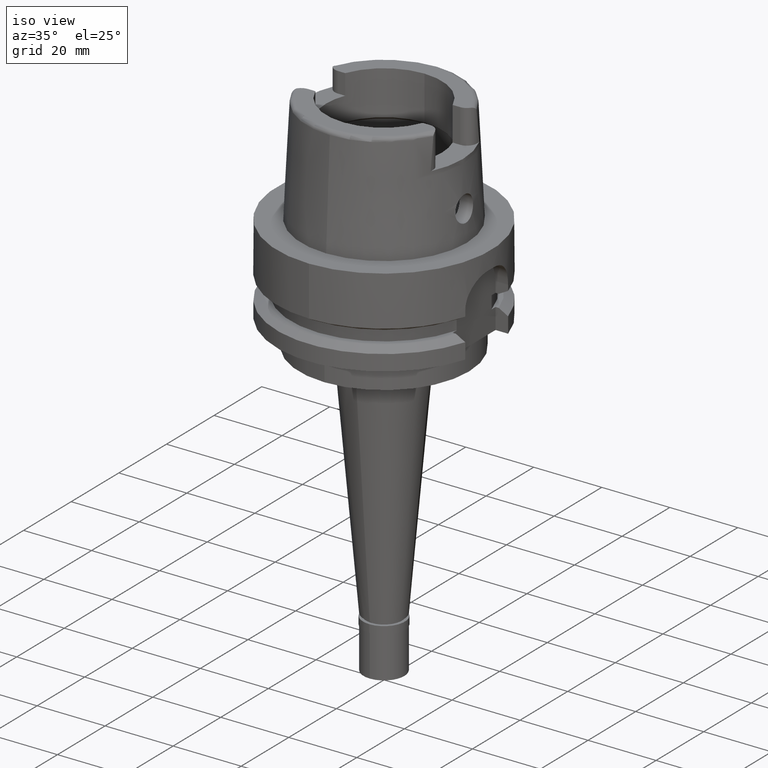
[diagram: clean part render]
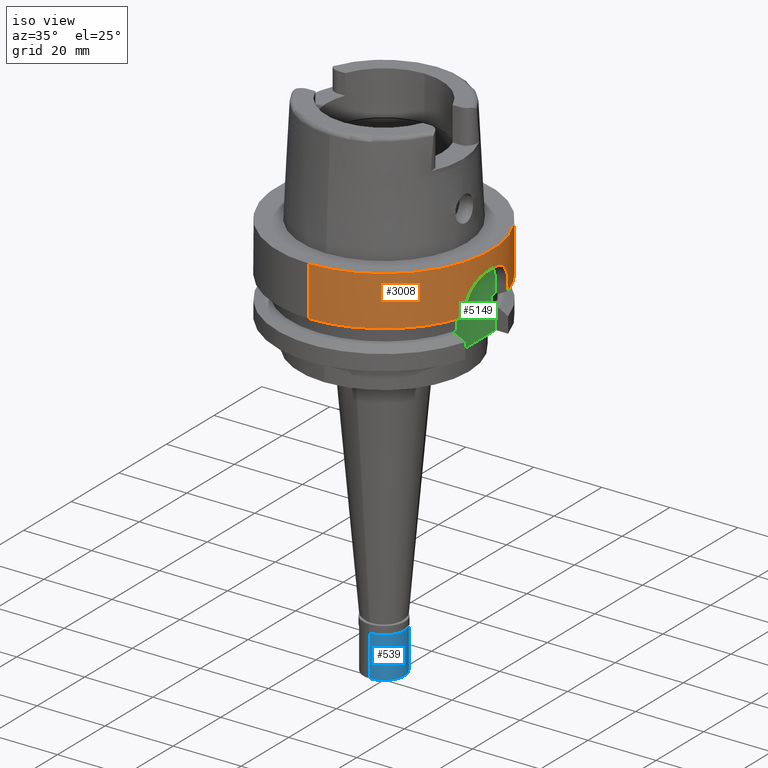
[diagram: same view with three faces highlighted in distinct colors, each labeled with its STEP entity id]
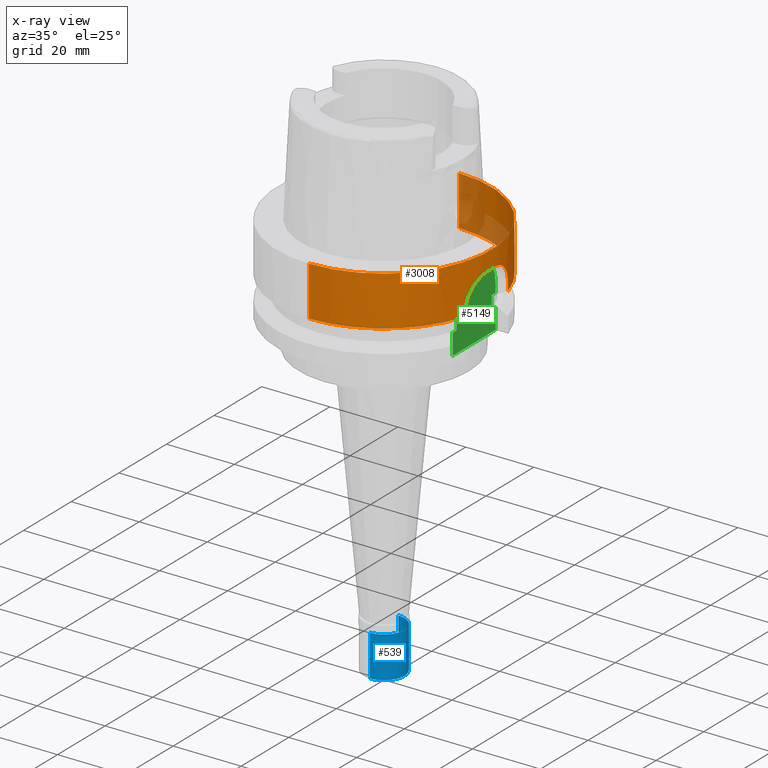
[diagram: x-ray of the same camera — body ghosted, the three highlighted faces saturated]
A machine part, iso view with three faces highlighted in distinct colors.
The next image is the same camera in x-ray (body ghosted, the three faces saturated) — at least one of them is partly hidden behind the body in this view.
Their STEP definitions:

[orange] entity #3008 — the highlighted cylindrical surface (partial cylindrical patch) has radius 31.5 mm, axis along (0, 0, -1).
#11 = CARTESIAN_POINT ( 'NONE',  ( 30.18691769625000276, -9.000000000000000000, -13.00000000000000000 ) ) ;
#13 = CARTESIAN_POINT ( 'NONE',  ( 30.20110605438760842, 8.955397615993094362, -12.01112715175320567 ) ) ;
#52 = DIRECTION ( 'NONE',  ( 0.0000000000000000000, 1.000000000000000000, 0.0000000000000000000 ) ) ;
#77 = ORIENTED_EDGE ( 'NONE', *, *, #3439, .T. ) ;
#126 = CARTESIAN_POINT ( 'NONE',  ( 30.36230293885864739, -8.389956036954375307, -9.935924523434211508 ) ) ;
#127 = CARTESIAN_POINT ( 'NONE',  ( 31.01962633873424480, 5.480345957716079575, -6.372292598407210740 ) ) ;
#153 = CYLINDRICAL_SURFACE ( 'NONE', #4391, 31.50000000000000000 ) ;
#179 = FACE_OUTER_BOUND ( 'NONE', #3016, .T. ) ;
#240 = CARTESIAN_POINT ( 'NONE',  ( 30.18691773962000013, 8.999999854531999688, -14.62250209852999916 ) ) ;
#296 = DIRECTION ( 'NONE',  ( 0.9583148474999051425, 0.2857142857143015191, 0.0000000000000000000 ) ) ;
#300 = CARTESIAN_POINT ( 'NONE',  ( 30.49285535141876124, -7.910442679082494877, -8.960801660764378340 ) ) ;
#327 = CARTESIAN_POINT ( 'NONE',  ( 31.46870561802330712, -1.485402210733119954, -4.999999999999999112 ) ) ;
#349 = CARTESIAN_POINT ( 'NONE',  ( 30.89704961210854250, -6.133164547383786136, -6.861840935391973595 ) ) ;
#390 = AXIS2_PLACEMENT_3D ( 'NONE', #2803, #5349, #3616 ) ;
#404 = VERTEX_POINT ( 'NONE', #1311 ) ;
#406 = CARTESIAN_POINT ( 'NONE',  ( 30.82666952453532971, -6.477928986087222896, -7.169539233518150922 ) ) ;
#431 = CARTESIAN_POINT ( 'NONE',  ( 30.36292802459573181, -8.387687556142255474, -9.930459101586819770 ) ) ;
#433 = CARTESIAN_POINT ( 'NONE',  ( 30.77827897772836963, 6.704335757469771728, -7.391019593709949653 ) ) ;
#441 = EDGE_CURVE ( 'NONE', #3857, #4040, #1778, .T. ) ;
#466 = DIRECTION ( 'NONE',  ( 0.0000000000000000000, -1.000000000000000000, 0.0000000000000000000 ) ) ;
#467 = CARTESIAN_POINT ( 'NONE',  ( 0.0000000000000000000, 1.707157638010999903E-14, -8.526512829120999020E-14 ) ) ;
#485 = CARTESIAN_POINT ( 'NONE',  ( 30.37994356318518996, -8.326097652178544806, -9.785570822359927590 ) ) ;
#552 = CARTESIAN_POINT ( 'NONE',  ( 30.18691769625000276, 9.000000000000000000, -13.00000000000000000 ) ) ;
#557 = DIRECTION ( 'NONE',  ( -2.673007076783973183E-08, 8.965647846310919482E-08, 0.9999999999999955591 ) ) ;
#569 = CARTESIAN_POINT ( 'NONE',  ( 31.46848308311365372, 1.492408527027198062, -4.999999999999998224 ) ) ;
#586 = LINE ( 'NONE', #5263, #4340 ) ;
#593 = CARTESIAN_POINT ( 'NONE',  ( 31.01968326647390484, 5.480023423964589746, -6.372074906244979076 ) ) ;
#624 = CARTESIAN_POINT ( 'NONE',  ( 31.10253753378502140, 4.993364919125201418, -6.062914666069091574 ) ) ;
#705 = CARTESIAN_POINT ( 'NONE',  ( 0.0000000000000000000, 1.036372656197999898E-14, -14.62250092523999889 ) ) ;
#762 = CARTESIAN_POINT ( 'NONE',  ( 31.12802758947132276, -4.827483298400053080, -5.973785632010057967 ) ) ;
#813 = CARTESIAN_POINT ( 'NONE',  ( 31.03025659501036415, -5.419787033906877660, -6.331755270316821615 ) ) ;
#816 = CARTESIAN_POINT ( 'NONE',  ( 30.68453991815790616, 7.124639429518460076, -7.850860369359960345 ) ) ;
#844 = CARTESIAN_POINT ( 'NONE',  ( 30.77037764607385029, 6.740577194316948351, -7.428059353607519455 ) ) ;
#895 = CARTESIAN_POINT ( 'NONE',  ( 30.36386856289420422, -8.384275053963985869, -9.922250248961692165 ) ) ;
#896 = CARTESIAN_POINT ( 'NONE',  ( 0.0000000000000000000, -31.50000000000000000, -8.526512829120999020E-14 ) ) ;
#904 = CARTESIAN_POINT ( 'NONE',  ( 0.0000000000000000000, 31.50000000000000000, -14.62250092523999889 ) ) ;
#924 = CARTESIAN_POINT ( 'NONE',  ( 30.35408641439992294, 8.419636902412671375, -10.00849287695441525 ) ) ;
#950 = CARTESIAN_POINT ( 'NONE',  ( 30.18691773962000013, 8.999999854531999688, -14.62250209852999916 ) ) ;
#981 = CARTESIAN_POINT ( 'NONE',  ( 31.30185894694527349, 3.563580567021028767, -5.401029616606841444 ) ) ;
#1010 = CARTESIAN_POINT ( 'NONE',  ( 31.01796957194492421, 5.489705485498522997, -6.378627642673113662 ) ) ;
#1033 = CARTESIAN_POINT ( 'NONE',  ( 31.22795408578506127, 4.130097680628811219, -5.637740077769655578 ) ) ;
#1093 = VERTEX_POINT ( 'NONE', #950 ) ;
#1145 = CARTESIAN_POINT ( 'NONE',  ( 31.24246449970888406, -4.018728728073758028, -5.591400189306306778 ) ) ;
#1146 = ORIENTED_EDGE ( 'NONE', *, *, #1865, .F. ) ;
#1170 = CARTESIAN_POINT ( 'NONE',  ( 31.27997315418586055, -3.714732619047042217, -5.474387239773226277 ) ) ;
#1177 = CIRCLE ( 'NONE', #5372, 31.50000000000000000 ) ;
#1195 = CARTESIAN_POINT ( 'NONE',  ( 30.81626248337290264, -6.527498683126909285, -7.216354841135881770 ) ) ;
#1223 = CARTESIAN_POINT ( 'NONE',  ( 30.59732907367891741, 7.495988719393257504, -8.321262247499982223 ) ) ;
#1245 = CARTESIAN_POINT ( 'NONE',  ( 30.60016354921370407, -7.489575536128322497, -8.292264414906085790 ) ) ;
#1275 = CARTESIAN_POINT ( 'NONE',  ( 30.40640383200156194, -8.230354259385160631, -9.574692344221507057 ) ) ;
#1311 = CARTESIAN_POINT ( 'NONE',  ( 0.0000000000000000000, -31.50000000000000000, -14.62250092523999889 ) ) ;
#1329 = CARTESIAN_POINT ( 'NONE',  ( 30.18691769624999921, -8.999999999999998224, -12.01408726843378716 ) ) ;
#1330 = CARTESIAN_POINT ( 'NONE',  ( 30.34495716198983928, 8.452640952067323354, -10.09136464638232233 ) ) ;
#1389 = CARTESIAN_POINT ( 'NONE',  ( 30.24517205177146906, -8.815232857536237532, -10.96374874858311621 ) ) ;
#1393 = ORIENTED_EDGE ( 'NONE', *, *, #4297, .T. ) ;
#1413 = EDGE_CURVE ( 'NONE', #4350, #2656, #2836, .T. ) ;
#1424 = CARTESIAN_POINT ( 'NONE',  ( 31.20864534926291967, 4.274300215187010643, -5.700318323107847363 ) ) ;
#1454 = CARTESIAN_POINT ( 'NONE',  ( 31.01590098231999804, 5.501359413818630806, -6.386538011407701276 ) ) ;
#1478 = CARTESIAN_POINT ( 'NONE',  ( 31.01153961823608185, 5.525822232794031841, -6.403223808385819282 ) ) ;
#1561 = CIRCLE ( 'NONE', #3791, 31.49999999999999645 ) ;
#1599 = CARTESIAN_POINT ( 'NONE',  ( 31.02908509465280318, -5.426488125711312449, -6.336201980604887041 ) ) ;
#1622 = CARTESIAN_POINT ( 'NONE',  ( 31.03357087380920376, -5.400789273983384930, -6.319191758798779368 ) ) ;
#1649 = CARTESIAN_POINT ( 'NONE',  ( 31.10948880782539661, -4.945764485860163262, -6.039381142685788184 ) ) ;
#1651 = CARTESIAN_POINT ( 'NONE',  ( 30.39683595794478776, 8.264762755941037042, -9.628328618113121351 ) ) ;
#1664 = CARTESIAN_POINT ( 'NONE',  ( 30.18691748978999811, -9.000000692472998054, -14.62249533990000039 ) ) ;
#1675 = CARTESIAN_POINT ( 'NONE',  ( 30.68759315031717350, -7.124798356815719380, -7.809288283626652394 ) ) ;
#1677 = CARTESIAN_POINT ( 'NONE',  ( 30.66200935682741147, 7.221987631264618734, -7.969196484041696671 ) ) ;
#1705 = CARTESIAN_POINT ( 'NONE',  ( 30.77952997297018101, 6.698588075571910494, -7.385175619639420042 ) ) ;
#1778 = CIRCLE ( 'NONE', #4900, 31.50000000000000000 ) ;
#1817 = CARTESIAN_POINT ( 'NONE',  ( 31.15609337011391844, 4.642766946925577898, -5.876252527828397021 ) ) ;
#1838 = VERTEX_POINT ( 'NONE', #1664 ) ;
#1865 = EDGE_CURVE ( 'NONE', #3857, #3489, #2542, .T. ) ;
#1875 = CARTESIAN_POINT ( 'NONE',  ( 31.48412298285999711, 1.000000000000000000, -5.000000000000000000 ) ) ;
#1901 = CARTESIAN_POINT ( 'NONE',  ( 30.97052288493675931, 5.750138030287406110, -6.562185880622542378 ) ) ;
#1923 = ORIENTED_EDGE ( 'NONE', *, *, #3316, .T. ) ;
#1994 = CARTESIAN_POINT ( 'NONE',  ( 31.24756669976262202, -3.978797233280609191, -5.575224836830170894 ) ) ;
#2020 = CARTESIAN_POINT ( 'NONE',  ( 30.97882376546616001, -5.708344319411335022, -6.526940199690828948 ) ) ;
#2047 = CARTESIAN_POINT ( 'NONE',  ( 0.0000000000000000000, 31.50000000000000000, -8.526512829120999020E-14 ) ) ;
#2059 = VERTEX_POINT ( 'NONE', #552 ) ;
#2070 = CARTESIAN_POINT ( 'NONE',  ( 31.30229305136465712, -3.522325760018140794, -5.406821798510646815 ) ) ;
#2092 = CARTESIAN_POINT ( 'NONE',  ( 31.48412298285999711, -1.000000000000000000, -5.000000000000000000 ) ) ;
#2097 = CARTESIAN_POINT ( 'NONE',  ( 30.79826078530474476, -6.611913374889388351, -7.298546540479559752 ) ) ;
#2112 = VECTOR ( 'NONE', #557, 1000.000000000000227 ) ;
#2142 = VECTOR ( 'NONE', #2837, 1000.000000000000114 ) ;
#2154 = CARTESIAN_POINT ( 'NONE',  ( 30.46105865279715985, -8.029808357980128264, -9.174703388263608872 ) ) ;
#2187 = CARTESIAN_POINT ( 'NONE',  ( 30.36608352010728140, -8.376243802775732661, -9.903021378279220244 ) ) ;
#2239 = CARTESIAN_POINT ( 'NONE',  ( 31.48412298285999711, 1.000000000000000000, -5.000000000000000000 ) ) ;
#2474 = CARTESIAN_POINT ( 'NONE',  ( 31.03125228627080290, -5.414086454102442936, -6.327978033033677008 ) ) ;
#2499 = CARTESIAN_POINT ( 'NONE',  ( 31.25463656302765614, -3.922859386149479377, -5.552922555532028959 ) ) ;
#2537 = CARTESIAN_POINT ( 'NONE',  ( 0.0000000000000000000, 1.036372656197999898E-14, -14.62250092523999889 ) ) ;
#2542 = LINE ( 'NONE', #4231, #2703 ) ;
#2556 = CARTESIAN_POINT ( 'NONE',  ( 30.77511389600274683, 6.718864262890845040, -7.405833469164160299 ) ) ;
#2583 = CARTESIAN_POINT ( 'NONE',  ( 30.35629208750637886, 8.411650305330505617, -9.988778013089770980 ) ) ;
#2633 = DIRECTION ( 'NONE',  ( 0.0000000000000000000, 0.0000000000000000000, -1.000000000000000000 ) ) ;
#2656 = VERTEX_POINT ( 'NONE', #4191 ) ;
#2703 = VECTOR ( 'NONE', #4256, 1000.000000000000000 ) ;
#2803 = CARTESIAN_POINT ( 'NONE',  ( 0.0000000000000000000, 1.707157638010999903E-14, -5.000000000000000000 ) ) ;
#2836 = B_SPLINE_CURVE_WITH_KNOTS ( 'NONE', 3,
 ( #5437, #327, #2946, #3755, #4665, #4558, #2070, #1170, #3390, #2499, #1994, #4975, #1145, #5078, #2919, #3784, #762, #1649, #3706, #4190, #2868, #4633, #1622, #2474, #813, #4165, #1599, #2899, #2020, #4584, #349, #4112, #4217, #406, #1195, #3339, #2097, #3804, #5484, #1675, #1245, #300, #2154, #4690, #1275, #3916, #485, #3475, #2187, #895, #431, #126, #3450, #1389, #1329, #11 ),
 .UNSPECIFIED., .F., .F.,
 ( 4, 2, 2, 2, 1, 1, 1, 2, 2, 2, 2, 1, 1, 1, 1, 1, 2, 2, 2, 2, 2, 1, 1, 2, 2, 2, 2, 2, 1, 1, 1, 1, 2, 2, 4 ),
 ( 0.0000000000000000000, 0.1250000000000412170, 0.1875000000000617562, 0.2187500000000720812, 0.2343750000000771327, 0.2421875000000797695, 0.2460937500000810740, 0.2480468750000817124, 0.2500000000000823230, 0.3125000000000996425, 0.3437500000001083578, 0.3593750000001127431, 0.3671875000001150191, 0.3710937500001160738, 0.3730468750001165734, 0.3740234375001167400, 0.3745117187501169620, 0.3750000000001171285, 0.4375000000001231792, 0.4687500000001261213, 0.4843750000001275646, 0.4921875000001282308, 0.4960937500001285083, 0.4980468750001285638, 0.5000000000001286748, 0.6250000000001391109, 0.6875000000001441069, 0.7187500000001468825, 0.7343750000001481038, 0.7421875000001485478, 0.7460937500001488809, 0.7480468750001491030, 0.7490234375001487699, 0.7500000000001483258, 1.000000000000000000 ),
 .UNSPECIFIED. ) ;
#2837 = DIRECTION ( 'NONE',  ( -1.272461606778999475E-07, -4.267954455860002933E-07, -0.9999999999999007461 ) ) ;
#2868 = CARTESIAN_POINT ( 'NONE',  ( 31.04735102109953004, -5.321127899485734503, -6.267234331015293591 ) ) ;
#2899 = CARTESIAN_POINT ( 'NONE',  ( 31.00874798500444740, -5.542724430790107348, -6.413435654078431192 ) ) ;
#2919 = CARTESIAN_POINT ( 'NONE',  ( 31.21248490521300667, -4.251446583589039818, -5.686794611023388235 ) ) ;
#2946 = CARTESIAN_POINT ( 'NONE',  ( 31.44068757862277508, -1.987774036304316150, -5.044283341417692412 ) ) ;
#2950 = CARTESIAN_POINT ( 'NONE',  ( 30.71979146057515564, 6.968947557277740401, -7.672911036238636129 ) ) ;
#2976 = CARTESIAN_POINT ( 'NONE',  ( 30.24367112880045383, 8.810694335721535708, -11.25082614398552394 ) ) ;
#2998 = CARTESIAN_POINT ( 'NONE',  ( 30.35540877907742541, 8.414849115998162432, -9.996663407152212244 ) ) ;
#3008 = ADVANCED_FACE ( 'NONE', ( #179 ), #153, .T. ) ;
#3016 = EDGE_LOOP ( 'NONE', ( #1393, #1146, #3634, #3558, #77, #5334, #3611, #1923, #4735, #4869 ) ) ;
#3051 = CARTESIAN_POINT ( 'NONE',  ( 30.35101908258086212, 8.430735436364527047, -10.03610448554374734 ) ) ;
#3084 = CARTESIAN_POINT ( 'NONE',  ( 31.19700112748089538, 4.358220806317568474, -5.738715414400951786 ) ) ;
#3137 = DIRECTION ( 'NONE',  ( 0.0000000000000000000, -1.000000000000000000, 0.0000000000000000000 ) ) ;
#3143 = VERTEX_POINT ( 'NONE', #2239 ) ;
#3147 = CARTESIAN_POINT ( 'NONE',  ( 31.06311153665863856, 5.234215507232291564, -6.206011024631072459 ) ) ;
#3203 = CARTESIAN_POINT ( 'NONE',  ( 31.17301478899677392, 4.527664390873041178, -5.818691817395900578 ) ) ;
#3255 = CIRCLE ( 'NONE', #390, 31.49999999999999289 ) ;
#3316 = EDGE_CURVE ( 'NONE', #4350, #3143, #3255, .T. ) ;
#3339 = CARTESIAN_POINT ( 'NONE',  ( 30.80372124785018073, -6.586431820372634860, -7.273503248251548037 ) ) ;
#3356 = LINE ( 'NONE', #5359, #2142 ) ;
#3364 = CARTESIAN_POINT ( 'NONE',  ( 30.45202139315085788, 8.069344242662944922, -9.218679707167598991 ) ) ;
#3390 = CARTESIAN_POINT ( 'NONE',  ( 31.26851787728637788, -3.810874551116996134, -5.509525764864286579 ) ) ;
#3394 = CARTESIAN_POINT ( 'NONE',  ( 30.73778115688914170, 6.888684963231537672, -7.583827119830203856 ) ) ;
#3422 = CARTESIAN_POINT ( 'NONE',  ( 30.84307012470097931, 6.406183641250016159, -7.089342774680416959 ) ) ;
#3439 = EDGE_CURVE ( 'NONE', #404, #1838, #1177, .T. ) ;
#3450 = CARTESIAN_POINT ( 'NONE',  ( 30.36213587496693833, -8.390562335614418998, -9.937385586960120420 ) ) ;
#3475 = CARTESIAN_POINT ( 'NONE',  ( 30.37059490593336974, -8.359904073294488924, -9.864265387517875183 ) ) ;
#3476 = CARTESIAN_POINT ( 'NONE',  ( 30.31062244376229486, 8.575950237278766153, -10.42382863508584023 ) ) ;
#3489 = VERTEX_POINT ( 'NONE', #904 ) ;
#3510 = CARTESIAN_POINT ( 'NONE',  ( 31.23241691383773855, 4.096110616414089023, -5.623405030359610812 ) ) ;
#3555 = LINE ( 'NONE', #240, #2112 ) ;
#3558 = ORIENTED_EDGE ( 'NONE', *, *, #5329, .T. ) ;
#3566 = CARTESIAN_POINT ( 'NONE',  ( 30.99865930896705635, 5.597208795777113721, -6.452693806706488289 ) ) ;
#3595 = CARTESIAN_POINT ( 'NONE',  ( 31.01897584365311289, 5.484023361100425653, -6.374779921378407543 ) ) ;
#3611 = ORIENTED_EDGE ( 'NONE', *, *, #1413, .F. ) ;
#3616 = DIRECTION ( 'NONE',  ( 0.9994959677099152229, -0.03174603174603050915, 0.0000000000000000000 ) ) ;
#3634 = ORIENTED_EDGE ( 'NONE', *, *, #441, .T. ) ;
#3706 = CARTESIAN_POINT ( 'NONE',  ( 31.08030786994187622, -5.125110345192886996, -6.145200024533830963 ) ) ;
#3755 = CARTESIAN_POINT ( 'NONE',  ( 31.37975950767623345, -2.752180734364163328, -5.189933166180118462 ) ) ;
#3784 = CARTESIAN_POINT ( 'NONE',  ( 31.18089840357977494, -4.477745570606149528, -5.790662116113023394 ) ) ;
#3791 = AXIS2_PLACEMENT_3D ( 'NONE', #705, #4106, #296 ) ;
#3804 = CARTESIAN_POINT ( 'NONE',  ( 30.79460144420302115, -6.628949656754806519, -7.315365531535035437 ) ) ;
#3806 = CARTESIAN_POINT ( 'NONE',  ( 30.18691769624999921, 9.000000000000005329, -12.51290277297533571 ) ) ;
#3857 = VERTEX_POINT ( 'NONE', #2047 ) ;
#3875 = DIRECTION ( 'NONE',  ( 0.0000000000000000000, 0.0000000000000000000, -1.000000000000000000 ) ) ;
#3916 = CARTESIAN_POINT ( 'NONE',  ( 30.38851535900043643, -8.295126439291056641, -9.716127431218959387 ) ) ;
#3944 = CARTESIAN_POINT ( 'NONE',  ( 31.43983511621941673, 2.002623051179913016, -5.045573344118738035 ) ) ;
#4029 = CARTESIAN_POINT ( 'NONE',  ( 31.23312940097714474, 4.090664857525299958, -5.621120141971895912 ) ) ;
#4040 = VERTEX_POINT ( 'NONE', #896 ) ;
#4042 = EDGE_CURVE ( 'NONE', #2059, #3143, #4982, .T. ) ;
#4106 = DIRECTION ( 'NONE',  ( 0.0000000000000000000, 0.0000000000000000000, 1.000000000000000000 ) ) ;
#4112 = CARTESIAN_POINT ( 'NONE',  ( 30.85998930460078782, -6.316826965319444653, -7.021877822920570722 ) ) ;
#4165 = CARTESIAN_POINT ( 'NONE',  ( 31.02959235397299409, -5.423587813959420245, -6.334276029400214725 ) ) ;
#4190 = CARTESIAN_POINT ( 'NONE',  ( 31.06537420964643204, -5.215262925602974775, -6.199965675166824397 ) ) ;
#4191 = CARTESIAN_POINT ( 'NONE',  ( 30.18691769625000276, -9.000000000000000000, -13.00000000000000000 ) ) ;
#4217 = CARTESIAN_POINT ( 'NONE',  ( 30.84702682114595262, -6.380165545682345396, -7.078705073596870179 ) ) ;
#4228 = DIRECTION ( 'NONE',  ( 0.0000000000000000000, 0.0000000000000000000, 1.000000000000000000 ) ) ;
#4231 = CARTESIAN_POINT ( 'NONE',  ( 0.0000000000000000000, 31.50000000000000000, -5.210646728906999149E-14 ) ) ;
#4256 = DIRECTION ( 'NONE',  ( 0.0000000000000000000, 2.721175632404000057E-14, -1.000000000000000000 ) ) ;
#4271 = CARTESIAN_POINT ( 'NONE',  ( 30.95338013805411848, 5.841557089954009463, -6.630024588699996890 ) ) ;
#4297 = EDGE_CURVE ( 'NONE', #1093, #3489, #1561, .T. ) ;
#4301 = CARTESIAN_POINT ( 'NONE',  ( 30.18691769625000276, 9.000000000000000000, -13.00000000000000000 ) ) ;
#4330 = CARTESIAN_POINT ( 'NONE',  ( 30.29333038228208608, 8.637223286383763465, -10.61454338905223693 ) ) ;
#4340 = VECTOR ( 'NONE', #4910, 1000.000000000000000 ) ;
#4350 = VERTEX_POINT ( 'NONE', #2092 ) ;
#4355 = CARTESIAN_POINT ( 'NONE',  ( 31.35652304813523727, 3.038208806380599647, -5.246042219089388503 ) ) ;
#4375 = CARTESIAN_POINT ( 'NONE',  ( 0.0000000000000000000, 1.707157638010999903E-14, 39.39999999999999858 ) ) ;
#4391 = AXIS2_PLACEMENT_3D ( 'NONE', #4375, #2633, #3137 ) ;
#4440 = CARTESIAN_POINT ( 'NONE',  ( 30.99213762543739392, 5.632954712285557441, -6.477880243393205006 ) ) ;
#4558 = CARTESIAN_POINT ( 'NONE',  ( 31.31638544065696550, -3.393891361091304404, -5.365394322532722526 ) ) ;
#4584 = CARTESIAN_POINT ( 'NONE',  ( 30.91932029330470755, -6.019228093746815667, -6.769060929918300218 ) ) ;
#4633 = CARTESIAN_POINT ( 'NONE',  ( 31.03818928060883664, -5.374211930433075324, -6.301728087948021084 ) ) ;
#4665 = CARTESIAN_POINT ( 'NONE',  ( 31.35629998205310187, -3.008737421513935750, -5.251667742804110972 ) ) ;
#4690 = CARTESIAN_POINT ( 'NONE',  ( 30.41932265582983064, -8.183401052370943063, -9.477000674110430012 ) ) ;
#4693 = CARTESIAN_POINT ( 'NONE',  ( 30.26140657647246357, 8.749514755585076742, -10.99616564353334525 ) ) ;
#4735 = ORIENTED_EDGE ( 'NONE', *, *, #4042, .F. ) ;
#4777 = CARTESIAN_POINT ( 'NONE',  ( 31.01940109800572998, 5.481619250829865564, -6.373153855845901106 ) ) ;
#4805 = CARTESIAN_POINT ( 'NONE',  ( 31.23063614445991476, 4.109694012163020993, -5.629120985532773069 ) ) ;
#4869 = ORIENTED_EDGE ( 'NONE', *, *, #5213, .F. ) ;
#4888 = CARTESIAN_POINT ( 'NONE',  ( 31.22161961662018115, 4.177904724661741120, -5.658169526705128405 ) ) ;
#4900 = AXIS2_PLACEMENT_3D ( 'NONE', #467, #3875, #52 ) ;
#4910 = DIRECTION ( 'NONE',  ( 0.0000000000000000000, -2.672583210396999878E-14, -1.000000000000000000 ) ) ;
#4933 = EDGE_CURVE ( 'NONE', #2656, #1838, #3356, .T. ) ;
#4975 = CARTESIAN_POINT ( 'NONE',  ( 31.24450907133427435, -4.002757891861931761, -5.584912722592584977 ) ) ;
#4982 = B_SPLINE_CURVE_WITH_KNOTS ( 'NONE', 3,
 ( #4301, #3806, #13, #2976, #4693, #4330, #3476, #5164, #1330, #3051, #924, #2998, #2583, #5465, #1651, #3364, #5053, #1223, #1677, #816, #2950, #3394, #5081, #844, #2556, #433, #1705, #3422, #5111, #4271, #1901, #4440, #3566, #5247, #1478, #1454, #1010, #3595, #4777, #593, #127, #3147, #624, #1817, #3203, #3084, #1424, #4888, #1033, #4805, #3510, #4029, #981, #4355, #3944, #569, #1875 ),
 .UNSPECIFIED., .F., .F.,
 ( 4, 2, 2, 1, 1, 1, 1, 1, 2, 2, 2, 2, 2, 1, 1, 1, 2, 2, 2, 2, 2, 1, 1, 1, 1, 2, 2, 2, 2, 1, 1, 1, 2, 2, 2, 4 ),
 ( 0.0000000000000000000, 0.1250000000000482392, 0.1875000000000723588, 0.2187500000000844325, 0.2343750000000903166, 0.2421875000000930644, 0.2460937500000944522, 0.2480468750000953959, 0.2490234375000959233, 0.2500000000000964784, 0.3750000000001216804, 0.4375000000001345035, 0.4687500000001409428, 0.4843750000001440514, 0.4921875000001457723, 0.4960937500001466605, 0.4980468750001471046, 0.5000000000001475486, 0.5625000000001627587, 0.5937500000001704192, 0.6093750000001740830, 0.6171875000001759703, 0.6210937500001767475, 0.6230468750001768585, 0.6240234375001767475, 0.6245117187501766365, 0.6250000000001764144, 0.6875000000001478817, 0.7187500000001336709, 0.7343750000001266764, 0.7421875000001232348, 0.7460937500001213474, 0.7480468750001203482, 0.7500000000001193490, 0.8750000000000596190, 1.000000000000000000 ),
 .UNSPECIFIED. ) ;
#5053 = CARTESIAN_POINT ( 'NONE',  ( 30.55809075270391162, 7.654587289772855740, -8.551970009390899463 ) ) ;
#5078 = CARTESIAN_POINT ( 'NONE',  ( 31.24128338013197848, -4.027921619691547050, -5.595154001820839440 ) ) ;
#5081 = CARTESIAN_POINT ( 'NONE',  ( 30.75940600485652965, 6.790683816919829141, -7.479951096285635259 ) ) ;
#5111 = CARTESIAN_POINT ( 'NONE',  ( 30.89375313775954979, 6.151398676762453555, -6.873652078403290844 ) ) ;
#5164 = CARTESIAN_POINT ( 'NONE',  ( 30.33312429299616042, 8.495288369666365469, -10.20202393757860726 ) ) ;
#5213 = EDGE_CURVE ( 'NONE', #1093, #2059, #3555, .T. ) ;
#5247 = CARTESIAN_POINT ( 'NONE',  ( 31.00741698930571033, 5.548757050574659289, -6.419027726085997365 ) ) ;
#5263 = CARTESIAN_POINT ( 'NONE',  ( 0.0000000000000000000, -31.50000000000000000, -5.210646728906999149E-14 ) ) ;
#5329 = EDGE_CURVE ( 'NONE', #4040, #404, #586, .T. ) ;
#5334 = ORIENTED_EDGE ( 'NONE', *, *, #4933, .F. ) ;
#5349 = DIRECTION ( 'NONE',  ( 0.0000000000000000000, 0.0000000000000000000, 1.000000000000000000 ) ) ;
#5359 = CARTESIAN_POINT ( 'NONE',  ( 30.18691769625000276, -9.000000000000000000, -13.00000000000000000 ) ) ;
#5372 = AXIS2_PLACEMENT_3D ( 'NONE', #2537, #4228, #466 ) ;
#5437 = CARTESIAN_POINT ( 'NONE',  ( 31.48412298285999711, -1.000000000000000000, -5.000000000000000000 ) ) ;
#5465 = CARTESIAN_POINT ( 'NONE',  ( 30.35686816605724303, 8.409563549979514718, -9.983648421419507812 ) ) ;
#5484 = CARTESIAN_POINT ( 'NONE',  ( 30.79252793530162080, -6.638577831373659421, -7.324918368458716245 ) ) ;

[blue] entity #539 — the highlighted cylindrical surface (edge-blend (fillet) strip) has radius 6 mm, axis along (0, 0, 1).
#2 = EDGE_LOOP ( 'NONE', ( #2032, #5090, #674, #291 ) ) ;
#94 = CARTESIAN_POINT ( 'NONE',  ( 0.0000000000000000000, 0.0000000000000000000, -2.299999999999999822 ) ) ;
#221 = AXIS2_PLACEMENT_3D ( 'NONE', #4534, #302, #2734 ) ;
#291 = ORIENTED_EDGE ( 'NONE', *, *, #3508, .F. ) ;
#302 = DIRECTION ( 'NONE',  ( 0.0000000000000000000, 0.0000000000000000000, 1.000000000000000000 ) ) ;
#502 = DIRECTION ( 'NONE',  ( 0.0000000000000000000, 0.0000000000000000000, -1.000000000000000000 ) ) ;
#529 = CARTESIAN_POINT ( 'NONE',  ( 0.0000000000000000000, -6.000000000000000000, -2.299999999999999822 ) ) ;
#539 = ADVANCED_FACE ( 'NONE', ( #5055 ), #2397, .T. ) ;
#541 = VECTOR ( 'NONE', #502, 1000.000000000000000 ) ;
#674 = ORIENTED_EDGE ( 'NONE', *, *, #2510, .T. ) ;
#678 = CARTESIAN_POINT ( 'NONE',  ( 0.0000000000000000000, 6.000000000000000000, -14.50000000000000000 ) ) ;
#875 = LINE ( 'NONE', #3401, #4134 ) ;
#1361 = DIRECTION ( 'NONE',  ( 0.0000000000000000000, 1.000000000000000000, 0.0000000000000000000 ) ) ;
#1436 = CIRCLE ( 'NONE', #3319, 6.000000000000000000 ) ;
#1450 = VERTEX_POINT ( 'NONE', #4354 ) ;
#1547 = CARTESIAN_POINT ( 'NONE',  ( 0.0000000000000000000, 6.000000000000000000, -2.299999999999999822 ) ) ;
#1559 = EDGE_CURVE ( 'NONE', #2475, #1450, #1436, .T. ) ;
#2032 = ORIENTED_EDGE ( 'NONE', *, *, #1559, .T. ) ;
#2397 = CYLINDRICAL_SURFACE ( 'NONE', #3930, 6.000000000000000000 ) ;
#2475 = VERTEX_POINT ( 'NONE', #1547 ) ;
#2510 = EDGE_CURVE ( 'NONE', #2636, #4287, #4652, .T. ) ;
#2636 = VERTEX_POINT ( 'NONE', #5080 ) ;
#2734 = DIRECTION ( 'NONE',  ( 0.0000000000000000000, -1.000000000000000000, 0.0000000000000000000 ) ) ;
#3030 = DIRECTION ( 'NONE',  ( 0.0000000000000000000, 0.0000000000000000000, -1.000000000000000000 ) ) ;
#3268 = DIRECTION ( 'NONE',  ( 0.0000000000000000000, 1.000000000000000000, 0.0000000000000000000 ) ) ;
#3319 = AXIS2_PLACEMENT_3D ( 'NONE', #94, #4717, #1361 ) ;
#3401 = CARTESIAN_POINT ( 'NONE',  ( 0.0000000000000000000, 6.000000000000000000, -2.299999999999999822 ) ) ;
#3508 = EDGE_CURVE ( 'NONE', #2475, #4287, #875, .T. ) ;
#3930 = AXIS2_PLACEMENT_3D ( 'NONE', #4118, #5367, #3268 ) ;
#4118 = CARTESIAN_POINT ( 'NONE',  ( 0.0000000000000000000, 0.0000000000000000000, -15.22500000000000142 ) ) ;
#4134 = VECTOR ( 'NONE', #3030, 1000.000000000000000 ) ;
#4287 = VERTEX_POINT ( 'NONE', #678 ) ;
#4321 = LINE ( 'NONE', #529, #541 ) ;
#4354 = CARTESIAN_POINT ( 'NONE',  ( 0.0000000000000000000, -6.000000000000000000, -2.299999999999999822 ) ) ;
#4534 = CARTESIAN_POINT ( 'NONE',  ( 0.0000000000000000000, 0.0000000000000000000, -14.50000000000000000 ) ) ;
#4652 = CIRCLE ( 'NONE', #221, 6.000000000000000000 ) ;
#4717 = DIRECTION ( 'NONE',  ( 0.0000000000000000000, 0.0000000000000000000, -1.000000000000000000 ) ) ;
#5055 = FACE_OUTER_BOUND ( 'NONE', #2, .T. ) ;
#5057 = EDGE_CURVE ( 'NONE', #1450, #2636, #4321, .T. ) ;
#5080 = CARTESIAN_POINT ( 'NONE',  ( 0.0000000000000000000, -6.000000000000000000, -14.50000000000000000 ) ) ;
#5090 = ORIENTED_EDGE ( 'NONE', *, *, #5057, .T. ) ;
#5367 = DIRECTION ( 'NONE',  ( 0.0000000000000000000, 0.0000000000000000000, 1.000000000000000000 ) ) ;

[green] entity #5149 — the highlighted planar face has unit normal (1, 0, 0).
#4 = CARTESIAN_POINT ( 'NONE',  ( 26.50000000000000000, 0.0000000000000000000, 0.0000000000000000000 ) ) ;
#33 = EDGE_CURVE ( 'NONE', #5289, #1549, #4199, .T. ) ;
#149 = EDGE_CURVE ( 'NONE', #4348, #1601, #5012, .T. ) ;
#164 = DIRECTION ( 'NONE',  ( 0.0000000000000000000, -1.000000000000000000, -1.069023342070707372E-13 ) ) ;
#170 = ORIENTED_EDGE ( 'NONE', *, *, #2653, .T. ) ;
#193 = EDGE_CURVE ( 'NONE', #1541, #5480, #4594, .T. ) ;
#196 = ORIENTED_EDGE ( 'NONE', *, *, #149, .T. ) ;
#408 = LINE ( 'NONE', #4144, #3776 ) ;
#417 = DIRECTION ( 'NONE',  ( -2.366280491871000116E-14, 1.000000000000000000, 0.0000000000000000000 ) ) ;
#424 = EDGE_CURVE ( 'NONE', #2451, #2685, #3402, .T. ) ;
#572 = CARTESIAN_POINT ( 'NONE',  ( 26.50000000000000000, -1.000000000000000000, -13.00000000000000000 ) ) ;
#738 = DIRECTION ( 'NONE',  ( 0.0000000000000000000, 1.000000000000000000, 0.0000000000000000000 ) ) ;
#748 = DIRECTION ( 'NONE',  ( 0.0000000000000000000, 1.000000000000000000, 0.0000000000000000000 ) ) ;
#789 = CARTESIAN_POINT ( 'NONE',  ( 26.50000000000000000, -1.000000000000000000, -5.000000000000000000 ) ) ;
#851 = CARTESIAN_POINT ( 'NONE',  ( 26.50000000000000000, -9.000000000000000000, -16.12500000000000000 ) ) ;
#972 = FACE_OUTER_BOUND ( 'NONE', #2044, .T. ) ;
#1000 = AXIS2_PLACEMENT_3D ( 'NONE', #5061, #3005, #2562 ) ;
#1052 = ORIENTED_EDGE ( 'NONE', *, *, #2278, .T. ) ;
#1147 = CARTESIAN_POINT ( 'NONE',  ( 26.50000000000000000, -7.348469228349999938, -16.12500000000000000 ) ) ;
#1174 = LINE ( 'NONE', #2949, #2266 ) ;
#1181 = VECTOR ( 'NONE', #3236, 1000.000000000000000 ) ;
#1199 = LINE ( 'NONE', #4535, #1181 ) ;
#1267 = DIRECTION ( 'NONE',  ( 0.0000000000000000000, 1.000000000000000000, 0.0000000000000000000 ) ) ;
#1285 = LINE ( 'NONE', #5494, #1620 ) ;
#1299 = CARTESIAN_POINT ( 'NONE',  ( 26.50000000000000000, -7.348469228349999938, -19.87500000000000000 ) ) ;
#1325 = VECTOR ( 'NONE', #1766, 1000.000000000000000 ) ;
#1351 = VERTEX_POINT ( 'NONE', #3362 ) ;
#1373 = EDGE_CURVE ( 'NONE', #1351, #3118, #3310, .T. ) ;
#1383 = CARTESIAN_POINT ( 'NONE',  ( 26.50000000000000000, -9.000000000000000000, -16.12500000000000000 ) ) ;
#1541 = VERTEX_POINT ( 'NONE', #5193 ) ;
#1548 = CARTESIAN_POINT ( 'NONE',  ( 26.50000000000000000, 9.000000000000000000, -16.12500000000000000 ) ) ;
#1549 = VERTEX_POINT ( 'NONE', #1299 ) ;
#1580 = CARTESIAN_POINT ( 'NONE',  ( 26.50000000000000000, 7.348469228349999938, -19.87500000000000000 ) ) ;
#1601 = VERTEX_POINT ( 'NONE', #4028 ) ;
#1620 = VECTOR ( 'NONE', #5011, 1000.000000000000000 ) ;
#1704 = DIRECTION ( 'NONE',  ( 0.0000000000000000000, 0.0000000000000000000, -1.000000000000000000 ) ) ;
#1717 = CARTESIAN_POINT ( 'NONE',  ( 26.50000000000000000, 9.000000000000000000, -26.00000000000000000 ) ) ;
#1766 = DIRECTION ( 'NONE',  ( 0.0000000000000000000, 0.0000000000000000000, 1.000000000000000000 ) ) ;
#1812 = LINE ( 'NONE', #3140, #3713 ) ;
#1837 = CARTESIAN_POINT ( 'NONE',  ( 26.50000000000000000, 0.9999999999999000799, -5.000000000000000000 ) ) ;
#1877 = VECTOR ( 'NONE', #3296, 1000.000000000000000 ) ;
#2044 = EDGE_LOOP ( 'NONE', ( #5042, #2125, #196, #1052, #5305, #4032, #5313, #5186, #4913, #3150, #170, #4016, #2681, #2891 ) ) ;
#2125 = ORIENTED_EDGE ( 'NONE', *, *, #3775, .F. ) ;
#2266 = VECTOR ( 'NONE', #5005, 1000.000000000000000 ) ;
#2278 = EDGE_CURVE ( 'NONE', #1601, #3893, #1285, .T. ) ;
#2285 = DIRECTION ( 'NONE',  ( -1.000000000000000000, 0.0000000000000000000, 0.0000000000000000000 ) ) ;
#2364 = EDGE_CURVE ( 'NONE', #3118, #4677, #4740, .T. ) ;
#2451 = VERTEX_POINT ( 'NONE', #4421 ) ;
#2562 = DIRECTION ( 'NONE',  ( 0.0000000000000000000, -3.146896805639176620E-14, 1.000000000000000000 ) ) ;
#2591 = DIRECTION ( 'NONE',  ( -2.366280491871000116E-14, 1.000000000000000000, 0.0000000000000000000 ) ) ;
#2629 = EDGE_CURVE ( 'NONE', #4677, #3893, #408, .T. ) ;
#2653 = EDGE_CURVE ( 'NONE', #2685, #1549, #1174, .T. ) ;
#2681 = ORIENTED_EDGE ( 'NONE', *, *, #4704, .F. ) ;
#2685 = VERTEX_POINT ( 'NONE', #1147 ) ;
#2697 = VECTOR ( 'NONE', #2591, 1000.000000000000000 ) ;
#2773 = CARTESIAN_POINT ( 'NONE',  ( 26.50000000000000000, -9.000000000000000000, -19.87500000000000000 ) ) ;
#2829 = CARTESIAN_POINT ( 'NONE',  ( 26.50000000000000000, 9.000000000000000000, -19.87500000000000000 ) ) ;
#2891 = ORIENTED_EDGE ( 'NONE', *, *, #193, .T. ) ;
#2929 = CARTESIAN_POINT ( 'NONE',  ( 26.50000000000000000, -9.000000000000000000, -26.00000000000000000 ) ) ;
#2949 = CARTESIAN_POINT ( 'NONE',  ( 26.50000000000000000, -7.348469228349999938, -16.12500000000000000 ) ) ;
#3005 = DIRECTION ( 'NONE',  ( -1.000000000000000000, 0.0000000000000000000, 0.0000000000000000000 ) ) ;
#3079 = DIRECTION ( 'NONE',  ( 0.0000000000000000000, 0.0000000000000000000, -1.000000000000000000 ) ) ;
#3107 = LINE ( 'NONE', #1383, #3165 ) ;
#3118 = VERTEX_POINT ( 'NONE', #1837 ) ;
#3140 = CARTESIAN_POINT ( 'NONE',  ( 26.50000000000000000, 9.000000000000000000, -19.87500000000000000 ) ) ;
#3142 = CIRCLE ( 'NONE', #5348, 8.000000000000000000 ) ;
#3150 = ORIENTED_EDGE ( 'NONE', *, *, #424, .T. ) ;
#3165 = VECTOR ( 'NONE', #4797, 1000.000000000000000 ) ;
#3173 = EDGE_CURVE ( 'NONE', #2451, #4941, #3107, .T. ) ;
#3197 = VERTEX_POINT ( 'NONE', #2829 ) ;
#3236 = DIRECTION ( 'NONE',  ( 2.366280491871000116E-14, 1.000000000000000000, 0.0000000000000000000 ) ) ;
#3296 = DIRECTION ( 'NONE',  ( 0.0000000000000000000, 0.0000000000000000000, 1.000000000000000000 ) ) ;
#3309 = AXIS2_PLACEMENT_3D ( 'NONE', #4, #5102, #1267 ) ;
#3310 = LINE ( 'NONE', #789, #3683 ) ;
#3357 = CARTESIAN_POINT ( 'NONE',  ( 26.50000000000000000, 7.348469228349999938, -19.87500000000000000 ) ) ;
#3362 = CARTESIAN_POINT ( 'NONE',  ( 26.50000000000000000, -1.000000000001000089, -5.000000000000000000 ) ) ;
#3402 = LINE ( 'NONE', #851, #2697 ) ;
#3683 = VECTOR ( 'NONE', #738, 1000.000000000000000 ) ;
#3713 = VECTOR ( 'NONE', #3079, 1000.000000000000000 ) ;
#3775 = EDGE_CURVE ( 'NONE', #4348, #3197, #1199, .T. ) ;
#3776 = VECTOR ( 'NONE', #1704, 1000.000000000000000 ) ;
#3821 = PLANE ( 'NONE',  #3309 ) ;
#3893 = VERTEX_POINT ( 'NONE', #1548 ) ;
#4016 = ORIENTED_EDGE ( 'NONE', *, *, #33, .F. ) ;
#4028 = CARTESIAN_POINT ( 'NONE',  ( 26.50000000000000000, 7.348469228349999938, -16.12500000000000000 ) ) ;
#4032 = ORIENTED_EDGE ( 'NONE', *, *, #2364, .F. ) ;
#4033 = LINE ( 'NONE', #5250, #1325 ) ;
#4124 = CARTESIAN_POINT ( 'NONE',  ( 26.50000000000000000, -9.000000000000000000, -19.87500000000000000 ) ) ;
#4144 = CARTESIAN_POINT ( 'NONE',  ( 26.50000000000000000, 9.000000000000000000, -13.00000000000000000 ) ) ;
#4199 = LINE ( 'NONE', #4124, #4638 ) ;
#4348 = VERTEX_POINT ( 'NONE', #3357 ) ;
#4414 = EDGE_CURVE ( 'NONE', #3197, #5480, #1812, .T. ) ;
#4421 = CARTESIAN_POINT ( 'NONE',  ( 26.50000000000000000, -9.000000000000000000, -16.12500000000000000 ) ) ;
#4535 = CARTESIAN_POINT ( 'NONE',  ( 26.50000000000000000, 7.348469228349999938, -19.87500000000000000 ) ) ;
#4594 = LINE ( 'NONE', #2929, #5353 ) ;
#4638 = VECTOR ( 'NONE', #417, 1000.000000000000000 ) ;
#4677 = VERTEX_POINT ( 'NONE', #5426 ) ;
#4704 = EDGE_CURVE ( 'NONE', #1541, #5289, #4033, .T. ) ;
#4740 = CIRCLE ( 'NONE', #1000, 8.000000000000000000 ) ;
#4797 = DIRECTION ( 'NONE',  ( 0.0000000000000000000, 0.0000000000000000000, 1.000000000000000000 ) ) ;
#4861 = EDGE_CURVE ( 'NONE', #4941, #1351, #3142, .T. ) ;
#4913 = ORIENTED_EDGE ( 'NONE', *, *, #3173, .F. ) ;
#4941 = VERTEX_POINT ( 'NONE', #5072 ) ;
#5005 = DIRECTION ( 'NONE',  ( 0.0000000000000000000, 0.0000000000000000000, -1.000000000000000000 ) ) ;
#5011 = DIRECTION ( 'NONE',  ( 2.366280491871000116E-14, 1.000000000000000000, 0.0000000000000000000 ) ) ;
#5012 = LINE ( 'NONE', #1580, #1877 ) ;
#5042 = ORIENTED_EDGE ( 'NONE', *, *, #4414, .F. ) ;
#5061 = CARTESIAN_POINT ( 'NONE',  ( 26.50000000000000000, 1.000000000000000000, -13.00000000000000000 ) ) ;
#5072 = CARTESIAN_POINT ( 'NONE',  ( 26.50000000000000000, -9.000000000000000000, -13.00000000000000000 ) ) ;
#5102 = DIRECTION ( 'NONE',  ( 1.000000000000000000, 0.0000000000000000000, 0.0000000000000000000 ) ) ;
#5149 = ADVANCED_FACE ( 'NONE', ( #972 ), #3821, .T. ) ;
#5186 = ORIENTED_EDGE ( 'NONE', *, *, #4861, .F. ) ;
#5193 = CARTESIAN_POINT ( 'NONE',  ( 26.50000000000000000, -9.000000000000000000, -26.00000000000000000 ) ) ;
#5250 = CARTESIAN_POINT ( 'NONE',  ( 26.50000000000000000, -9.000000000000000000, -26.00000000000000000 ) ) ;
#5289 = VERTEX_POINT ( 'NONE', #2773 ) ;
#5305 = ORIENTED_EDGE ( 'NONE', *, *, #2629, .F. ) ;
#5313 = ORIENTED_EDGE ( 'NONE', *, *, #1373, .F. ) ;
#5348 = AXIS2_PLACEMENT_3D ( 'NONE', #572, #2285, #164 ) ;
#5353 = VECTOR ( 'NONE', #748, 1000.000000000000000 ) ;
#5426 = CARTESIAN_POINT ( 'NONE',  ( 26.50000000000000000, 9.000000000000000000, -13.00000000000000000 ) ) ;
#5480 = VERTEX_POINT ( 'NONE', #1717 ) ;
#5494 = CARTESIAN_POINT ( 'NONE',  ( 26.50000000000000000, 7.348469228349999938, -16.12500000000000000 ) ) ;